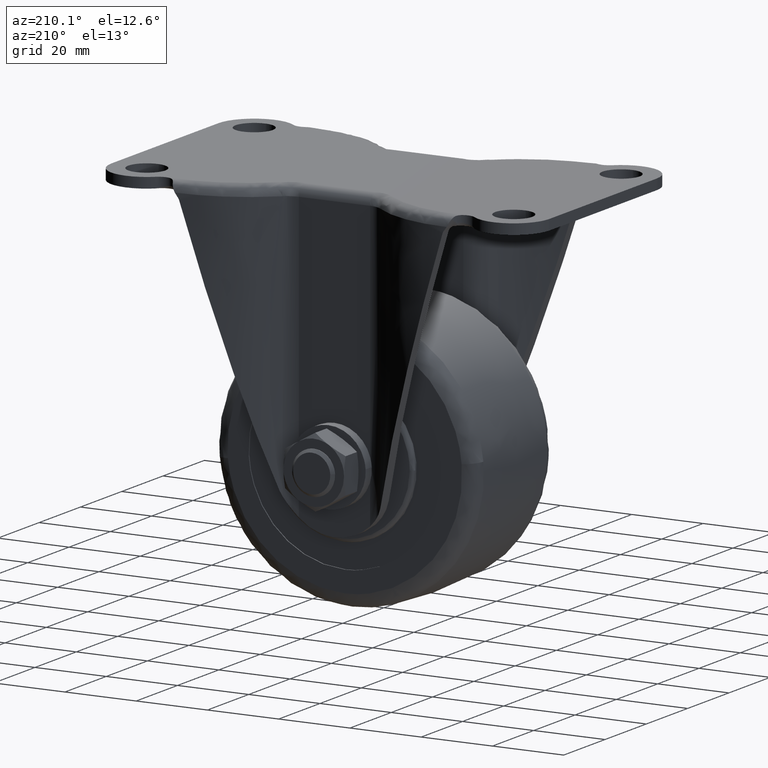
[diagram: clean part render]
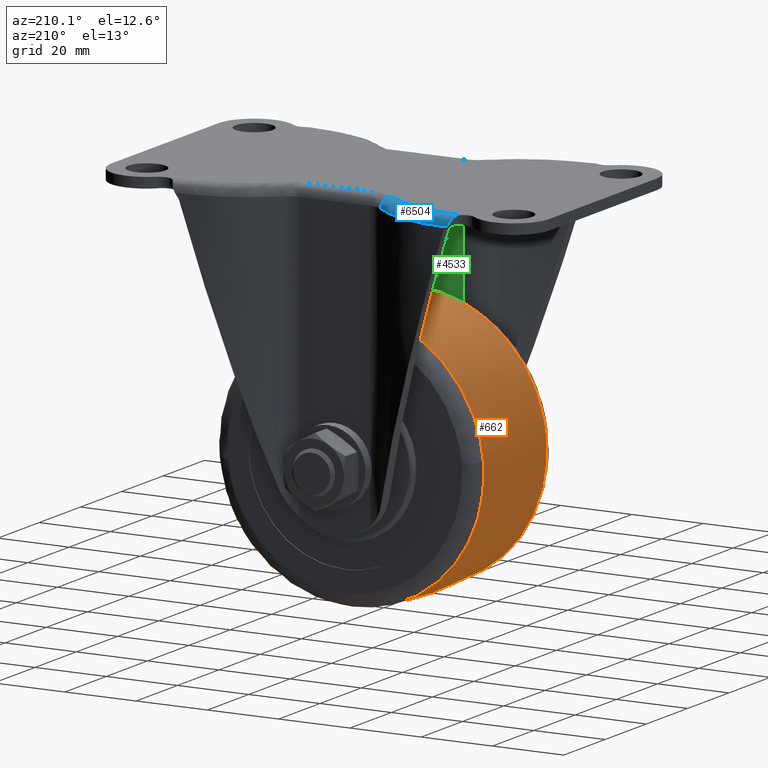
[diagram: same view with three faces highlighted in distinct colors, each labeled with its STEP entity id]
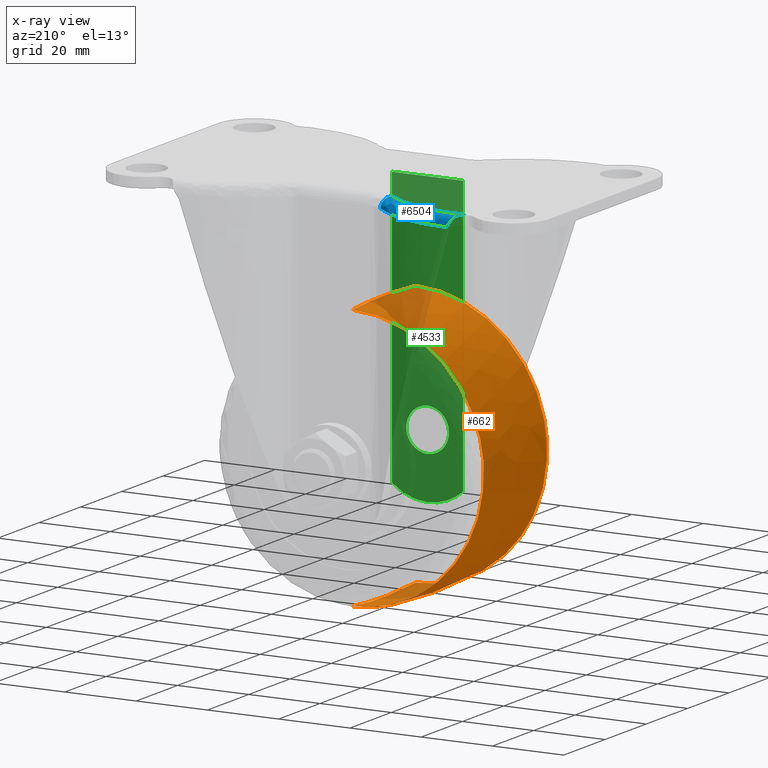
[diagram: x-ray of the same camera — body ghosted, the three highlighted faces saturated]
A machine part, auxiliary view with three faces highlighted in distinct colors.
The next image is the same camera in x-ray (body ghosted, the three faces saturated) — at least one of them is partly hidden behind the body in this view.
Their STEP definitions:

[orange] entity #662 — the highlighted face is a freeform B-spline surface patch.
#373=CARTESIAN_POINT('',(-36.840607240732311,-15.306120798510250,-70.817795966440372));
#374=VERTEX_POINT('',#373);
#388=CARTESIAN_POINT('',(0.0,-15.306124174110760,-105.413446044950800));
#389=VERTEX_POINT('',#388);
#390=CARTESIAN_POINT('',(-36.840607240732311,-15.306120798510250,-70.817795966440372));
#391=CARTESIAN_POINT('',(-34.664050744761269,-15.306122481742310,-105.413446044458270));
#392=CARTESIAN_POINT('',(0.0,-15.306124174110760,-105.413446044950800));
#400=(BOUNDED_CURVE()B_SPLINE_CURVE(2,(#390,#391,#392),.UNSPECIFIED.,.F.,.U.)B_SPLINE_CURVE_WITH_KNOTS((3,3),(0.760968003271853,1.0),.UNSPECIFIED.)CURVE()GEOMETRIC_REPRESENTATION_ITEM()RATIONAL_B_SPLINE_CURVE((0.975427864257024,0.719956596315546,1.0))REPRESENTATION_ITEM(''));
#401=EDGE_CURVE('',#374,#389,#400,.T.);
#469=CARTESIAN_POINT('',(0.0,-15.306124193607751,-31.586553707705431));
#470=VERTEX_POINT('',#469);
#484=CARTESIAN_POINT('',(0.0,-15.306124193607751,-31.586553707705431));
#485=CARTESIAN_POINT('',(-36.913446347514856,-15.306122604367193,-31.586553707242949));
#486=CARTESIAN_POINT('',(-36.913446339686963,-15.306120902250250,-68.499999875373121));
#487=CARTESIAN_POINT('',(-36.913446339440959,-15.306120848759500,-69.660042442254337));
#488=CARTESIAN_POINT('',(-36.840607240732311,-15.306120798510250,-70.817795966440372));
#496=(BOUNDED_CURVE()B_SPLINE_CURVE(2,(#484,#485,#486,#487,#488),.UNSPECIFIED.,.F.,.U.)B_SPLINE_CURVE_WITH_KNOTS((3,2,3),(0.500000000000000,0.750000000000000,0.760968003271853),.UNSPECIFIED.)CURVE()GEOMETRIC_REPRESENTATION_ITEM()RATIONAL_B_SPLINE_CURVE((1.0,0.707106781186547,1.0,0.987150184871001,0.975427864257024))REPRESENTATION_ITEM(''));
#497=EDGE_CURVE('',#470,#374,#496,.T.);
#532=CARTESIAN_POINT('',(0.0,15.306126726628420,-105.413445849030400));
#533=VERTEX_POINT('',#532);
#534=CARTESIAN_POINT('',(0.0,-15.306124174110753,-105.413446044950760));
#535=CARTESIAN_POINT('',(0.0,0.000001283777839,-106.588278844945510));
#536=CARTESIAN_POINT('',(0.0,15.306126726628420,-105.413445849030380));
#544=(BOUNDED_CURVE()B_SPLINE_CURVE(2,(#534,#535,#536),.UNSPECIFIED.,.F.,.U.)B_SPLINE_CURVE_WITH_KNOTS((3,3),(0.440426800220861,0.559573209743054),.UNSPECIFIED.)CURVE()GEOMETRIC_REPRESENTATION_ITEM()RATIONAL_B_SPLINE_CURVE((0.907580862299472,0.904919137477935,0.907580862744659))REPRESENTATION_ITEM(''));
#545=EDGE_CURVE('',#389,#533,#544,.T.);
#562=CARTESIAN_POINT('',(0.0,15.306126726583541,-31.586554150966169));
#563=VERTEX_POINT('',#562);
#579=CARTESIAN_POINT('',(0.0,-15.306124193607751,-31.586553707705427));
#580=CARTESIAN_POINT('',(0.0,0.000001274005271,-30.411721031345131));
#581=CARTESIAN_POINT('',(0.0,15.306126726583541,-31.586554150966169));
#589=(BOUNDED_CURVE()B_SPLINE_CURVE(2,(#579,#580,#581),.UNSPECIFIED.,.F.,.U.)B_SPLINE_CURVE_WITH_KNOTS((3,3),(0.440426800218874,0.559573209742879),.UNSPECIFIED.)CURVE()GEOMETRIC_REPRESENTATION_ITEM()RATIONAL_B_SPLINE_CURVE((0.907580862299561,0.904919137477894,0.907580862744651))REPRESENTATION_ITEM(''));
#590=EDGE_CURVE('',#470,#563,#589,.T.);
#597=CARTESIAN_POINT('',(1.028545633244748,-16.830030157664954,-31.709382847831790));
#598=CARTESIAN_POINT('',(1.068280295610236,0.000003840997134,-30.288091751443975));
#599=CARTESIAN_POINT('',(1.028545615236465,16.830037785261094,-31.709383491980038));
#600=CARTESIAN_POINT('',(0.517267812753407,-16.830030157664954,-31.709382847831790));
#601=CARTESIAN_POINT('',(0.537250846298988,0.000003840997134,-30.288091751443979));
#602=CARTESIAN_POINT('',(0.517267803696827,16.830037785261091,-31.709383491980041));
#603=CARTESIAN_POINT('',(-36.790617152168210,-16.830030157664943,-31.709382847831776));
#604=CARTESIAN_POINT('',(-38.211908248556028,0.000003840997138,-30.288091751443954));
#605=CARTESIAN_POINT('',(-36.790616508019959,16.830037785261094,-31.709383491980024));
#606=CARTESIAN_POINT('',(-36.790617152168217,-16.830030157664954,-68.500000000000000));
#607=CARTESIAN_POINT('',(-38.211908248556028,0.000003840997134,-68.499999999999986));
#608=CARTESIAN_POINT('',(-36.790616508019973,16.830037785261094,-68.500000000000000));
#609=CARTESIAN_POINT('',(-36.790617152168210,-16.830030157664943,-105.290617152168210));
#610=CARTESIAN_POINT('',(-38.211908248556028,0.000003840997138,-106.711908248556010));
#611=CARTESIAN_POINT('',(-36.790616508019959,16.830037785261094,-105.290616508019970));
#612=CARTESIAN_POINT('',(0.517267812753404,-16.830030157664954,-105.290617152168220));
#613=CARTESIAN_POINT('',(0.537250846298985,0.000003840997134,-106.711908248556010));
#614=CARTESIAN_POINT('',(0.517267803696824,16.830037785261094,-105.290616508019970));
#615=CARTESIAN_POINT('',(1.028545633244742,-16.830030157664954,-105.290617152168210));
#616=CARTESIAN_POINT('',(1.068280295610229,0.000003840997134,-106.711908248556010));
#617=CARTESIAN_POINT('',(1.028545615236458,16.830037785261094,-105.290616508019950));
#625=(BOUNDED_SURFACE()B_SPLINE_SURFACE(2,2,((#597,#600,#603,#606,#609,#612,#615),(#598,#601,#604,#607,#610,#613,#616),(#599,#602,#605,#608,#611,#614,#617)),.UNSPECIFIED.,.F.,.F.,.U.)B_SPLINE_SURFACE_WITH_KNOTS((3,3),(3,1,2,1,3),(0.0,33.719868711314149),(0.0,1.242640687119285,63.374675043083457,125.506709399047590,126.749350086166900),.UNSPECIFIED.)GEOMETRIC_REPRESENTATION_ITEM()RATIONAL_B_SPLINE_SURFACE(((0.918496292972066,0.913178171921432,0.641953998339106,0.907860050870799,0.641953998339106,0.913178171921432,0.918496292972066),(0.915238464651036,0.909939206523972,0.639677042043702,0.904639948396907,0.639677042043702,0.909939206523972,0.915238464651036),(0.918496294453814,0.913178173394600,0.641953999374726,0.907860052335387,0.641953999374726,0.913178173394600,0.918496294453814)))REPRESENTATION_ITEM('')SURFACE());
#626=ORIENTED_EDGE('',*,*,#545,.F.);
#627=ORIENTED_EDGE('',*,*,#401,.F.);
#628=ORIENTED_EDGE('',*,*,#497,.F.);
#629=ORIENTED_EDGE('',*,*,#590,.T.);
#630=CARTESIAN_POINT('',(-36.770723955077877,15.306126714455370,-65.257109620797138));
#631=VERTEX_POINT('',#630);
#632=CARTESIAN_POINT('',(0.0,15.306126726583541,-31.586554150966169));
#633=CARTESIAN_POINT('',(-33.801244268641952,15.306126720509216,-31.586554158091783));
#634=CARTESIAN_POINT('',(-36.770723955077884,15.306126714455377,-65.257109620797138));
#642=(BOUNDED_CURVE()B_SPLINE_CURVE(2,(#632,#633,#634),.UNSPECIFIED.,.F.,.U.)B_SPLINE_CURVE_WITH_KNOTS((3,3),(0.500000000000000,0.734718454824433),.UNSPECIFIED.)CURVE()GEOMETRIC_REPRESENTATION_ITEM()RATIONAL_B_SPLINE_CURVE((1.0,0.725010225006208,0.966381850644906))REPRESENTATION_ITEM(''));
#643=EDGE_CURVE('',#563,#631,#642,.T.);
#644=ORIENTED_EDGE('',*,*,#643,.T.);
#645=CARTESIAN_POINT('',(-36.770723955077884,15.306126714455377,-65.257109620797138));
#646=CARTESIAN_POINT('',(-36.913445768760567,15.306126714701149,-66.875414175306602));
#647=CARTESIAN_POINT('',(-36.913445772316472,15.306126714969480,-68.500000013648744));
#648=CARTESIAN_POINT('',(-36.913445853112968,15.306126721066235,-105.413445855555240));
#649=CARTESIAN_POINT('',(0.0,15.306126726628420,-105.413445849030400));
#657=(BOUNDED_CURVE()B_SPLINE_CURVE(2,(#645,#646,#647,#648,#649),.UNSPECIFIED.,.F.,.U.)B_SPLINE_CURVE_WITH_KNOTS((3,2,3),(0.734718454824433,0.750000000000000,1.0),.UNSPECIFIED.)CURVE()GEOMETRIC_REPRESENTATION_ITEM()RATIONAL_B_SPLINE_CURVE((0.966381850644906,0.982096556180339,1.0,0.707106781186547,1.0))REPRESENTATION_ITEM(''));
#658=EDGE_CURVE('',#631,#533,#657,.T.);
#659=ORIENTED_EDGE('',*,*,#658,.T.);
#660=EDGE_LOOP('',(#626,#627,#628,#629,#644,#659));
#661=FACE_OUTER_BOUND('',#660,.T.);
#662=ADVANCED_FACE('',(#661),#625,.T.);

[blue] entity #6504 — the highlighted face is a freeform B-spline surface patch.
#6304=CARTESIAN_POINT('',(-13.742971939924139,25.495297672985849,-2.900000000000000));
#6305=VERTEX_POINT('',#6304);
#6306=CARTESIAN_POINT('',(-15.730752308236349,23.383727355105648,0.0));
#6307=VERTEX_POINT('',#6306);
#6308=CARTESIAN_POINT('',(-13.742971939924139,25.495297672985849,-2.900000000000000));
#6309=CARTESIAN_POINT('',(-13.742971939924285,25.495297672985988,-2.602085E-015));
#6310=CARTESIAN_POINT('',(-15.730752308236490,23.383727355105780,0.0));
#6318=(BOUNDED_CURVE()B_SPLINE_CURVE(2,(#6308,#6309,#6310),.UNSPECIFIED.,.F.,.U.)CURVE()GEOMETRIC_REPRESENTATION_ITEM()QUASI_UNIFORM_CURVE()RATIONAL_B_SPLINE_CURVE((1.0,0.707106781186546,1.0))REPRESENTATION_ITEM(''));
#6319=EDGE_CURVE('',#6305,#6307,#6318,.T.);
#6351=CARTESIAN_POINT('',(-42.045182956154079,35.370911449757010,-2.822522609240866));
#6352=CARTESIAN_POINT('',(-42.045182953098788,35.370911450123899,-2.803012841438437));
#6353=CARTESIAN_POINT('',(-42.045182514132094,35.370911502831895,1.706897E-013));
#6354=CARTESIAN_POINT('',(-41.810599584921192,32.577750052519001,-1.203434E-015));
#6355=CARTESIAN_POINT('',(-41.808966820661411,32.558308850198443,-2.399860E-015));
#6356=CARTESIAN_POINT('',(-37.135708372107260,35.780789006611478,-2.849653178780776));
#6357=CARTESIAN_POINT('',(-37.135708359237434,35.780789002339667,-2.829955879760455));
#6358=CARTESIAN_POINT('',(-37.135706506365381,35.780788338859359,1.399486E-012));
#6359=CARTESIAN_POINT('',(-37.272640097885350,32.929635425091313,-9.866929E-015));
#6360=CARTESIAN_POINT('',(-37.273593194701974,32.909790584823959,-1.967639E-014));
#6361=CARTESIAN_POINT('',(-32.146390840518151,35.196404107303032,-2.877414872812008));
#6362=CARTESIAN_POINT('',(-32.146390840527744,35.196404107344357,-2.857525680124372));
#6363=CARTESIAN_POINT('',(-32.146390841842774,35.196404113788319,8.546001E-012));
#6364=CARTESIAN_POINT('',(-32.673199275751280,32.361531517138516,-6.025289E-014));
#6365=CARTESIAN_POINT('',(-32.676866013078396,32.341799993319860,-1.201549E-013));
#6366=CARTESIAN_POINT('',(-22.273817295986778,31.948629528842464,-2.924224801648556));
#6367=CARTESIAN_POINT('',(-22.273817295239365,31.948629529639028,-2.904012050596917));
#6368=CARTESIAN_POINT('',(-22.273817197298033,31.948629633939046,-9.483054E-012));
#6369=CARTESIAN_POINT('',(-23.587685548511050,29.323738369029265,6.685956E-014));
#6370=CARTESIAN_POINT('',(-23.596830447896032,29.305468375318309,1.333297E-013));
#6371=CARTESIAN_POINT('',(-17.471505284102385,29.066843401606558,-2.941416406418172));
#6372=CARTESIAN_POINT('',(-17.471505324411446,29.066843358611472,-2.921084823146301));
#6373=CARTESIAN_POINT('',(-17.471510609391057,29.066837724900470,2.935594E-011));
#6374=CARTESIAN_POINT('',(-19.177304397163027,26.655925250859465,-2.069747E-013));
#6375=CARTESIAN_POINT('',(-19.189177209849632,26.639144610300050,-4.127441E-013));
#6376=CARTESIAN_POINT('',(-13.520337473607569,25.285715061549482,-2.940773348609224));
#6377=CARTESIAN_POINT('',(-13.520337473607686,25.285715061549389,-2.920446211103553));
#6378=CARTESIAN_POINT('',(-13.520337473623034,25.285715061533242,-1.593845E-012));
#6379=CARTESIAN_POINT('',(-15.539829258630107,23.175916557758040,1.123727E-014));
#6380=CARTESIAN_POINT('',(-15.553885498870899,23.161231756933908,2.240910E-014));
#6388=(BOUNDED_SURFACE()B_SPLINE_SURFACE(2,3,((#6351,#6356,#6361,#6366,#6371,#6376),(#6352,#6357,#6362,#6367,#6372,#6377),(#6353,#6358,#6363,#6368,#6373,#6378),(#6354,#6359,#6364,#6369,#6374,#6379),(#6355,#6360,#6365,#6370,#6375,#6380)),.UNSPECIFIED.,.F.,.F.,.U.)B_SPLINE_SURFACE_WITH_KNOTS((3,1,1,3),(4,2,4),(0.0,0.048049605249141,4.853010122613987,4.901059735412372),(0.0,14.782542780667070,31.189185674256489),.UNSPECIFIED.)GEOMETRIC_REPRESENTATION_ITEM()RATIONAL_B_SPLINE_SURFACE(((1.005857864385473,1.005857864385473,1.005857864385473,1.005857864385473,1.005857864385473,1.005857864385473),(1.002928932192736,1.002928932192736,1.002928932192736,1.002928932192736,1.002928932192736,1.002928932192736),(0.707106781186546,0.707106781186546,0.707106781186546,0.707106781186546,0.707106781186546,0.707106781186546),(1.002928932652911,1.002928932652911,1.002928932652911,1.002928932652911,1.002928932652911,1.002928932652911),(1.005857865305823,1.005857865305823,1.005857865305823,1.005857865305823,1.005857865305823,1.005857865305823)))REPRESENTATION_ITEM('')SURFACE());
#6389=CARTESIAN_POINT('',(-38.142476741519751,35.489472741861150,-2.804612686576450));
#6390=VERTEX_POINT('',#6389);
#6391=CARTESIAN_POINT('',(-38.142476741519751,35.489472741861150,-2.804612686576450));
#6392=CARTESIAN_POINT('',(-37.889986036489631,35.484194766984508,-2.805968959177427));
#6393=CARTESIAN_POINT('',(-37.378257885570967,35.466872849879479,-2.808699484473210));
#6394=CARTESIAN_POINT('',(-36.610753019532289,35.426009044726896,-2.812754199408605));
#6395=CARTESIAN_POINT('',(-35.843083032022797,35.368606712102000,-2.816764825637871));
#6396=CARTESIAN_POINT('',(-35.085228250160441,35.296141537058062,-2.820681323288400));
#6397=CARTESIAN_POINT('',(-34.337462807635752,35.209062877132851,-2.824503397319160));
#6398=CARTESIAN_POINT('',(-33.600039317631513,35.107952894323482,-2.828231125950665));
#6399=CARTESIAN_POINT('',(-32.873189423926917,34.993356110447642,-2.831864489054932));
#6400=CARTESIAN_POINT('',(-32.157124361847693,34.865823508518069,-2.835403492417540));
#6401=CARTESIAN_POINT('',(-31.452035528487990,34.725900150829290,-2.838848135003839));
#6402=CARTESIAN_POINT('',(-30.758095060417968,34.574127719651912,-2.842198417582271));
#6403=CARTESIAN_POINT('',(-30.075456417495349,34.411043170381070,-2.845454340455176));
#6404=CARTESIAN_POINT('',(-29.404254971379348,34.237178450148413,-2.848615904053464));
#6405=CARTESIAN_POINT('',(-28.744608597435040,34.053059976801457,-2.851683108787760));
#6406=CARTESIAN_POINT('',(-28.096618268777341,33.859208220863749,-2.854655955082932));
#6407=CARTESIAN_POINT('',(-27.460368651270020,33.656137299304213,-2.857534443373968));
#6408=CARTESIAN_POINT('',(-26.835928698360291,33.444354604082122,-2.860318574106646));
#6409=CARTESIAN_POINT('',(-26.223352244692311,33.224360458374768,-2.863008347740793));
#6410=CARTESIAN_POINT('',(-25.622678597505590,32.996647801279671,-2.865603764749763));
#6411=CARTESIAN_POINT('',(-25.033933124885280,32.761701899692923,-2.868104825621645));
#6412=CARTESIAN_POINT('',(-24.457127839990370,32.520000086598252,-2.870511530865213));
#6413=CARTESIAN_POINT('',(-23.892261980444950,32.272011524851813,-2.872823881003362));
#6414=CARTESIAN_POINT('',(-23.339322582133089,32.018196995577917,-2.875041876584428));
#6415=CARTESIAN_POINT('',(-22.798285046694009,31.759008710278071,-2.877165518177298));
#6416=CARTESIAN_POINT('',(-22.269113702067159,31.494890145757420,-2.879194806376559));
#6417=CARTESIAN_POINT('',(-21.751762355488239,31.226275900971920,-2.881129741804410));
#6418=CARTESIAN_POINT('',(-21.246174838388551,30.953591574903928,-2.882970325113363));
#6419=CARTESIAN_POINT('',(-20.752285542696800,30.677253664576170,-2.884716556987578));
#6420=CARTESIAN_POINT('',(-20.270019948090169,30.397669482323810,-2.886368438148669));
#6421=CARTESIAN_POINT('',(-19.799295139788459,30.115237091446112,-2.887925969355947));
#6422=CARTESIAN_POINT('',(-19.340020316515311,29.830345259384469,-2.889389151411947));
#6423=CARTESIAN_POINT('',(-18.892097288343770,29.543373427528831,-2.890757985166114));
#6424=CARTESIAN_POINT('',(-18.455420963991461,29.254691696968660,-2.892032471518658));
#6425=CARTESIAN_POINT('',(-18.029879827867301,28.964660828777379,-2.893212611419794));
#6426=CARTESIAN_POINT('',(-17.615356404664539,28.673632260133171,-2.894298405907504));
#6427=CARTESIAN_POINT('',(-17.211727718587671,28.381948127759600,-2.895289855981206));
#6428=CARTESIAN_POINT('',(-16.818865720640211,28.089941325976760,-2.896186963098024));
#6429=CARTESIAN_POINT('',(-16.436637780000481,27.797935496469339,-2.896989727389571));
#6430=CARTESIAN_POINT('',(-16.064906889861401,27.506245320323391,-2.897698154182517));
#6431=CARTESIAN_POINT('',(-15.703532857958900,27.215175762230839,-2.898312230340498));
#6432=CARTESIAN_POINT('',(-15.352369867623541,26.925025167560619,-2.898832010219794));
#6433=CARTESIAN_POINT('',(-15.011277161326319,26.636074416634909,-2.899257303716941));
#6434=CARTESIAN_POINT('',(-14.680082058804000,26.348626708164549,-2.899588808037514));
#6435=CARTESIAN_POINT('',(-14.358715773026280,26.062863781766058,-2.899824004066771));
#6436=CARTESIAN_POINT('',(-14.046722901800999,25.779367455101269,-2.899972027403961));
#6437=CARTESIAN_POINT('',(-13.843533062025060,25.589343057625889,-2.899990739269998));
#6438=CARTESIAN_POINT('',(-13.742971939924139,25.495297672985849,-2.900000000000000));
#6439=B_SPLINE_CURVE_WITH_KNOTS('',3,(#6391,#6392,#6393,#6394,#6395,#6396,#6397,#6398,#6399,#6400,#6401,#6402,#6403,#6404,#6405,#6406,#6407,#6408,#6409,#6410,#6411,#6412,#6413,#6414,#6415,#6416,#6417,#6418,#6419,#6420,#6421,#6422,#6423,#6424,#6425,#6426,#6427,#6428,#6429,#6430,#6431,#6432,#6433,#6434,#6435,#6436,#6437,#6438),.UNSPECIFIED.,.F.,.U.,(4,1,1,1,1,1,1,1,1,1,1,1,1,1,1,1,1,1,1,1,1,1,1,1,1,1,1,1,1,1,1,1,1,1,1,1,1,1,1,1,1,1,1,1,1,4),(0.029661912956623,0.056924580552807,0.084928476902993,0.112626776954118,0.140019480454794,0.167106587161676,0.193888096839647,0.220364009262002,0.246534324210660,0.272399041476372,0.297958160858954,0.323211682167526,0.348159605220767,0.372801929847195,0.397138655885444,0.421169783184585,0.444895311604446,0.468315241015961,0.491429571301549,0.514238302355503,0.536741434084419,0.558938966407648,0.580830899257782,0.602417232581171,0.623697966338483,0.644673100505299,0.665342635072755,0.685706570048229,0.705764905456089,0.725517641338487,0.744964777756221,0.764106314789671,0.782942252539800,0.801472591129248,0.819697330703510,0.837616471432219,0.855230013510536,0.872537957160671,0.889540302633531,0.906237050210522,0.922628200205525,0.938713752967050,0.954493708880605,0.969968068371299,0.985136831906701,1.0),.UNSPECIFIED.);
#6440=EDGE_CURVE('',#6390,#6305,#6439,.T.);
#6441=ORIENTED_EDGE('',*,*,#6440,.F.);
#6442=CARTESIAN_POINT('',(-39.175399955356148,34.716517889631348,-0.858697416951458));
#6443=VERTEX_POINT('',#6442);
#6444=CARTESIAN_POINT('',(-38.142476741519751,35.489472741861150,-2.804612686576450));
#6445=CARTESIAN_POINT('',(-38.147943275002987,35.489581911870069,-2.797976799964255));
#6446=CARTESIAN_POINT('',(-38.163766647963740,35.489897914282317,-2.778768629171560));
#6447=CARTESIAN_POINT('',(-38.188957615249329,35.489833295206303,-2.736590723293927));
#6448=CARTESIAN_POINT('',(-38.226006005405850,35.488572961600667,-2.674311349646237));
#6449=CARTESIAN_POINT('',(-38.272940150460983,35.484546570973812,-2.589884140493788));
#6450=CARTESIAN_POINT('',(-38.330586832892529,35.475728416395590,-2.483451889432510));
#6451=CARTESIAN_POINT('',(-38.398552757381452,35.459387944299010,-2.354316589023290));
#6452=CARTESIAN_POINT('',(-38.480583841543250,35.430976148940992,-2.195976529014167));
#6453=CARTESIAN_POINT('',(-38.581092520221119,35.381661288587694,-1.996053520822219));
#6454=CARTESIAN_POINT('',(-38.702094056030212,35.298150926851861,-1.749204479451731));
#6455=CARTESIAN_POINT('',(-38.824655474305892,35.185000109874252,-1.503515437334750));
#6456=CARTESIAN_POINT('',(-38.924570527761858,35.075173112469187,-1.316115209995878));
#6457=CARTESIAN_POINT('',(-38.994404634413883,34.993016018185472,-1.193485827425698));
#6458=CARTESIAN_POINT('',(-39.057659853948167,34.914714993820823,-1.086156489696477));
#6459=CARTESIAN_POINT('',(-39.123729579201559,34.825045665589762,-0.974696527639191));
#6460=CARTESIAN_POINT('',(-39.160109107931383,34.748924377310082,-0.893242680030723));
#6461=CARTESIAN_POINT('',(-39.175399955356148,34.716517889631348,-0.858697416951458));
#6462=B_SPLINE_CURVE_WITH_KNOTS('',3,(#6444,#6445,#6446,#6447,#6448,#6449,#6450,#6451,#6452,#6453,#6454,#6455,#6456,#6457,#6458,#6459,#6460,#6461),.UNSPECIFIED.,.F.,.U.,(4,1,1,1,1,1,1,1,1,1,1,1,1,1,1,4),(0.0,0.010756130510940,0.031134587432972,0.061338797280483,0.101584034662197,0.152132053111552,0.213288477421065,0.285389515731603,0.378146208889004,0.499976306359603,0.644682387551162,0.749262112216272,0.799066753940012,0.849076554995252,0.933543097444400,0.995806952702337),.UNSPECIFIED.);
#6463=EDGE_CURVE('',#6390,#6443,#6462,.T.);
#6464=ORIENTED_EDGE('',*,*,#6463,.T.);
#6465=CARTESIAN_POINT('',(-41.530390510604349,32.617807939678137,0.0));
#6466=VERTEX_POINT('',#6465);
#6467=CARTESIAN_POINT('',(-41.530390510604349,32.617807939678137,0.0));
#6468=CARTESIAN_POINT('',(-41.471730088690158,32.634372405354263,-0.000111475830922));
#6469=CARTESIAN_POINT('',(-41.357413379701697,32.666653032401520,-0.000328718559611));
#6470=CARTESIAN_POINT('',(-41.193793374124169,32.724555937202162,-0.002070113447297));
#6471=CARTESIAN_POINT('',(-41.041663901838987,32.786156257820302,-0.004864119137337));
#6472=CARTESIAN_POINT('',(-40.901065000419678,32.850851206106533,-0.008797482104855));
#6473=CARTESIAN_POINT('',(-40.771702408618260,32.917198884359387,-0.013847359239101));
#6474=CARTESIAN_POINT('',(-40.653278610371352,32.984090492463302,-0.020019243528569));
#6475=CARTESIAN_POINT('',(-40.545430577644289,33.050464296625130,-0.027305928699463));
#6476=CARTESIAN_POINT('',(-40.447770502474732,33.115364505398887,-0.035721146263612));
#6477=CARTESIAN_POINT('',(-40.359871968444473,33.177952144261461,-0.045212327056074));
#6478=CARTESIAN_POINT('',(-40.109408280941643,33.367605403938192,-0.079439353910780));
#6479=CARTESIAN_POINT('',(-39.751621430635034,33.714289413027650,-0.175431314104818));
#6480=CARTESIAN_POINT('',(-39.385524151956993,34.243024640099982,-0.439911397798081));
#6481=CARTESIAN_POINT('',(-39.233700997091482,34.568855065967199,-0.705173240110853));
#6482=CARTESIAN_POINT('',(-39.175399955356148,34.716517889631348,-0.858697416951458));
#6483=B_SPLINE_CURVE_WITH_KNOTS('',3,(#6467,#6468,#6469,#6470,#6471,#6472,#6473,#6474,#6475,#6476,#6477,#6478,#6479,#6480,#6481,#6482),.UNSPECIFIED.,.F.,.U.,(4,1,1,1,1,1,1,1,1,1,1,1,1,4),(0.0,0.032486953750099,0.063310176036651,0.092471136981343,0.119971586319654,0.145813624178658,0.169999795867174,0.192533221079302,0.213417773521713,0.232658336284610,0.250261174233097,0.381907250608065,0.499300928393847,0.616574985259840),.UNSPECIFIED.);
#6484=EDGE_CURVE('',#6466,#6443,#6483,.T.);
#6485=ORIENTED_EDGE('',*,*,#6484,.F.);
#6486=CARTESIAN_POINT('',(-15.730752308236349,23.383727355105648,0.0));
#6487=CARTESIAN_POINT('',(-16.799831587859899,24.390394072582151,0.0));
#6488=CARTESIAN_POINT('',(-18.614583577269510,25.890373120417220,0.0));
#6489=CARTESIAN_POINT('',(-21.549395301626848,27.846172731487741,0.0));
#6490=CARTESIAN_POINT('',(-24.324334361513738,29.360563908874891,0.0));
#6491=CARTESIAN_POINT('',(-26.965751317147539,30.474898858567631,0.0));
#6492=CARTESIAN_POINT('',(-29.680128090262428,31.389820577777090,0.0));
#6493=CARTESIAN_POINT('',(-32.032894880195563,31.982297601818729,0.0));
#6494=CARTESIAN_POINT('',(-34.640895688701853,32.418799860219089,0.0));
#6495=CARTESIAN_POINT('',(-37.637263017452163,32.727058072153838,0.0));
#6496=CARTESIAN_POINT('',(-39.992219720706977,32.724470866796963,0.0));
#6497=CARTESIAN_POINT('',(-41.530390510604349,32.617807939678137,0.0));
#6498=B_SPLINE_CURVE_WITH_KNOTS('',3,(#6486,#6487,#6488,#6489,#6490,#6491,#6492,#6493,#6494,#6495,#6496,#6497),.UNSPECIFIED.,.F.,.U.,(4,1,1,1,1,1,1,1,1,4),(0.000000043882892,4.405319124337620,7.048534481496724,10.572796372450680,13.876781849153611,15.638932013587469,19.163176447922488,21.145596837951580,23.568527726760930,28.194122573694461),.UNSPECIFIED.);
#6499=EDGE_CURVE('',#6307,#6466,#6498,.T.);
#6500=ORIENTED_EDGE('',*,*,#6499,.F.);
#6501=ORIENTED_EDGE('',*,*,#6319,.F.);
#6502=EDGE_LOOP('',(#6441,#6464,#6485,#6500,#6501));
#6503=FACE_OUTER_BOUND('',#6502,.T.);
#6504=ADVANCED_FACE('',(#6503),#6388,.T.);

[green] entity #4533 — the highlighted face is a freeform B-spline surface patch.
#3303=CARTESIAN_POINT('',(5.999772538343400,-21.100000000000001,-68.447640777876501));
#3304=VERTEX_POINT('',#3303);
#3310=CARTESIAN_POINT('',(0.0,-21.100000000000001,-74.500001000000012));
#3311=VERTEX_POINT('',#3310);
#3312=CARTESIAN_POINT('',(5.999772538343400,-21.100000000000001,-68.447640777876501));
#3313=CARTESIAN_POINT('',(6.000000999999999,-21.100000000000005,-68.473819890509063));
#3314=CARTESIAN_POINT('',(6.000000999999999,-21.100000000000001,-68.500000000000000));
#3315=CARTESIAN_POINT('',(6.000000999999999,-21.100000000000009,-74.500001000000012));
#3316=CARTESIAN_POINT('',(0.0,-21.100000000000001,-74.500001000000012));
#3324=(BOUNDED_CURVE()B_SPLINE_CURVE(2,(#3312,#3313,#3314,#3315,#3316),.UNSPECIFIED.,.F.,.U.)B_SPLINE_CURVE_WITH_KNOTS((3,2,3),(0.248460105653072,0.250000000000000,0.500000000000000),.UNSPECIFIED.)CURVE()GEOMETRIC_REPRESENTATION_ITEM()RATIONAL_B_SPLINE_CURVE((0.996414028072771,0.998195901552383,1.0,0.707106781186548,1.0))REPRESENTATION_ITEM(''));
#3325=EDGE_CURVE('',#3304,#3311,#3324,.T.);
#3327=CARTESIAN_POINT('',(-5.999772538343400,-21.100000000000001,-68.552359222123485));
#3328=VERTEX_POINT('',#3327);
#3329=CARTESIAN_POINT('',(0.0,-21.100000000000001,-74.500001000000012));
#3330=CARTESIAN_POINT('',(-5.947868254477881,-21.099999999999998,-74.500001000000012));
#3331=CARTESIAN_POINT('',(-5.999772538343401,-21.100000000000005,-68.552359222123485));
#3339=(BOUNDED_CURVE()B_SPLINE_CURVE(2,(#3329,#3330,#3331),.UNSPECIFIED.,.F.,.U.)B_SPLINE_CURVE_WITH_KNOTS((3,3),(0.500000000000000,0.748460105653073),.UNSPECIFIED.)CURVE()GEOMETRIC_REPRESENTATION_ITEM()RATIONAL_B_SPLINE_CURVE((1.0,0.708910879634164,0.996414028072773))REPRESENTATION_ITEM(''));
#3340=EDGE_CURVE('',#3311,#3328,#3339,.T.);
#3386=CARTESIAN_POINT('',(0.0,-21.100000000000001,-62.499999000000010));
#3387=VERTEX_POINT('',#3386);
#3388=CARTESIAN_POINT('',(-5.999772538343401,-21.100000000000005,-68.552359222123485));
#3389=CARTESIAN_POINT('',(-6.000000999999999,-21.099999999999998,-68.526180109490923));
#3390=CARTESIAN_POINT('',(-6.000000999999999,-21.100000000000001,-68.500000000000000));
#3391=CARTESIAN_POINT('',(-6.000000999999999,-21.100000000000009,-62.499999000000010));
#3392=CARTESIAN_POINT('',(0.0,-21.100000000000001,-62.499999000000010));
#3400=(BOUNDED_CURVE()B_SPLINE_CURVE(2,(#3388,#3389,#3390,#3391,#3392),.UNSPECIFIED.,.F.,.U.)B_SPLINE_CURVE_WITH_KNOTS((3,2,3),(0.748460105653073,0.750000000000000,1.0),.UNSPECIFIED.)CURVE()GEOMETRIC_REPRESENTATION_ITEM()RATIONAL_B_SPLINE_CURVE((0.996414028072773,0.998195901552383,1.0,0.707106781186548,1.0))REPRESENTATION_ITEM(''));
#3401=EDGE_CURVE('',#3328,#3387,#3400,.T.);
#3403=CARTESIAN_POINT('',(0.0,-21.100000000000001,-62.499999000000010));
#3404=CARTESIAN_POINT('',(5.947868254477867,-21.100000000000012,-62.499999000000024));
#3405=CARTESIAN_POINT('',(5.999772538343401,-21.099999999999998,-68.447640777876501));
#3413=(BOUNDED_CURVE()B_SPLINE_CURVE(2,(#3403,#3404,#3405),.UNSPECIFIED.,.F.,.U.)B_SPLINE_CURVE_WITH_KNOTS((3,3),(0.0,0.248460105653072),.UNSPECIFIED.)CURVE()GEOMETRIC_REPRESENTATION_ITEM()RATIONAL_B_SPLINE_CURVE((1.0,0.708910879634165,0.996414028072772))REPRESENTATION_ITEM(''));
#3414=EDGE_CURVE('',#3387,#3304,#3413,.T.);
#3585=CARTESIAN_POINT('',(9.973043655194289,-21.100000000000001,-82.704393452130105));
#3586=VERTEX_POINT('',#3585);
#3687=CARTESIAN_POINT('',(-9.973043999999890,-21.100000000000001,-82.704393145217892));
#3688=VERTEX_POINT('',#3687);
#3708=CARTESIAN_POINT('',(9.973043655194280,-21.100000000000001,-82.704393452130091));
#3709=CARTESIAN_POINT('',(-0.000000308994282,-21.100000000000001,-91.581412639416328));
#3710=CARTESIAN_POINT('',(-9.973043999999891,-21.100000000000001,-82.704393145217892));
#3718=(BOUNDED_CURVE()B_SPLINE_CURVE(2,(#3708,#3709,#3710),.UNSPECIFIED.,.F.,.U.)CURVE()GEOMETRIC_REPRESENTATION_ITEM()QUASI_UNIFORM_CURVE()RATIONAL_B_SPLINE_CURVE((1.0,0.746959456918000,1.0))REPRESENTATION_ITEM(''));
#3719=EDGE_CURVE('',#3586,#3688,#3718,.T.);
#3921=CARTESIAN_POINT('',(9.973043655194289,-21.100000000000001,-5.400000000000000));
#3922=VERTEX_POINT('',#3921);
#3923=CARTESIAN_POINT('',(9.973043655194289,-21.100000000000001,-82.704393452130105));
#3924=CARTESIAN_POINT('',(9.973043655194289,-21.100000000000001,-5.400000000000000));
#3925=QUASI_UNIFORM_CURVE('',1,(#3923,#3924),.UNSPECIFIED.,.F.,.U.);
#3926=EDGE_CURVE('',#3586,#3922,#3925,.T.);
#4487=CARTESIAN_POINT('',(-9.973044000000000,-21.100000000000001,-5.400000000000000));
#4488=VERTEX_POINT('',#4487);
#4502=CARTESIAN_POINT('',(-9.973043999999890,-21.100000000000001,-82.704393145217892));
#4503=CARTESIAN_POINT('',(-9.973044000000000,-21.100000000000001,-5.400000000000000));
#4504=QUASI_UNIFORM_CURVE('',1,(#4502,#4503),.UNSPECIFIED.,.F.,.U.);
#4505=EDGE_CURVE('',#3688,#4488,#4504,.T.);
#4512=CARTESIAN_POINT('',(-10.969351039717569,-21.100000000000001,-90.550946359889252));
#4513=CARTESIAN_POINT('',(-10.969351039717569,-21.100000000000001,-1.349052909743047));
#4514=CARTESIAN_POINT('',(10.969351229907620,-21.100000000000001,-90.550946359889252));
#4515=CARTESIAN_POINT('',(10.969351229907620,-21.100000000000001,-1.349052909743047));
#4516=B_SPLINE_SURFACE_WITH_KNOTS('',1,1,((#4512,#4514),(#4513,#4515)),.UNSPECIFIED.,.F.,.F.,.U.,(2,2),(2,2),(0.0,89.201893450146201),(0.0,21.938702269625189),.UNSPECIFIED.);
#4517=ORIENTED_EDGE('',*,*,#4505,.T.);
#4518=CARTESIAN_POINT('',(-9.973044000000000,-21.100000000000001,-5.400000000000000));
#4519=CARTESIAN_POINT('',(9.973043655194289,-21.100000000000001,-5.400000000000000));
#4520=QUASI_UNIFORM_CURVE('',1,(#4518,#4519),.UNSPECIFIED.,.F.,.U.);
#4521=EDGE_CURVE('',#4488,#3922,#4520,.T.);
#4522=ORIENTED_EDGE('',*,*,#4521,.T.);
#4523=ORIENTED_EDGE('',*,*,#3926,.F.);
#4524=ORIENTED_EDGE('',*,*,#3719,.T.);
#4525=EDGE_LOOP('',(#4517,#4522,#4523,#4524));
#4526=FACE_OUTER_BOUND('',#4525,.T.);
#4527=ORIENTED_EDGE('',*,*,#3414,.F.);
#4528=ORIENTED_EDGE('',*,*,#3401,.F.);
#4529=ORIENTED_EDGE('',*,*,#3340,.F.);
#4530=ORIENTED_EDGE('',*,*,#3325,.F.);
#4531=EDGE_LOOP('',(#4527,#4528,#4529,#4530));
#4532=FACE_BOUND('',#4531,.T.);
#4533=ADVANCED_FACE('',(#4526,#4532),#4516,.T.);